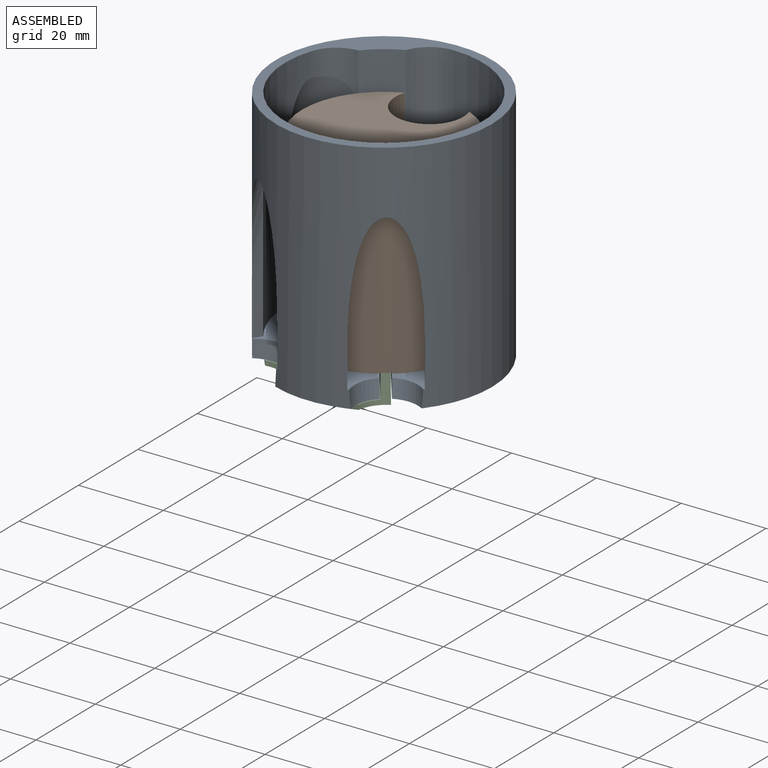
[diagram: assembled view]
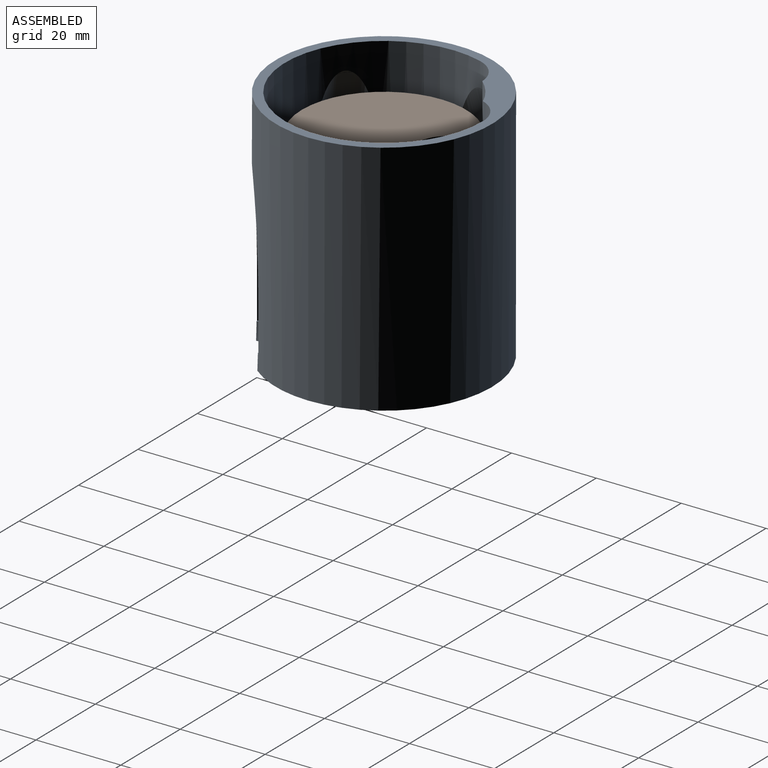
[diagram: assembled view, second angle]
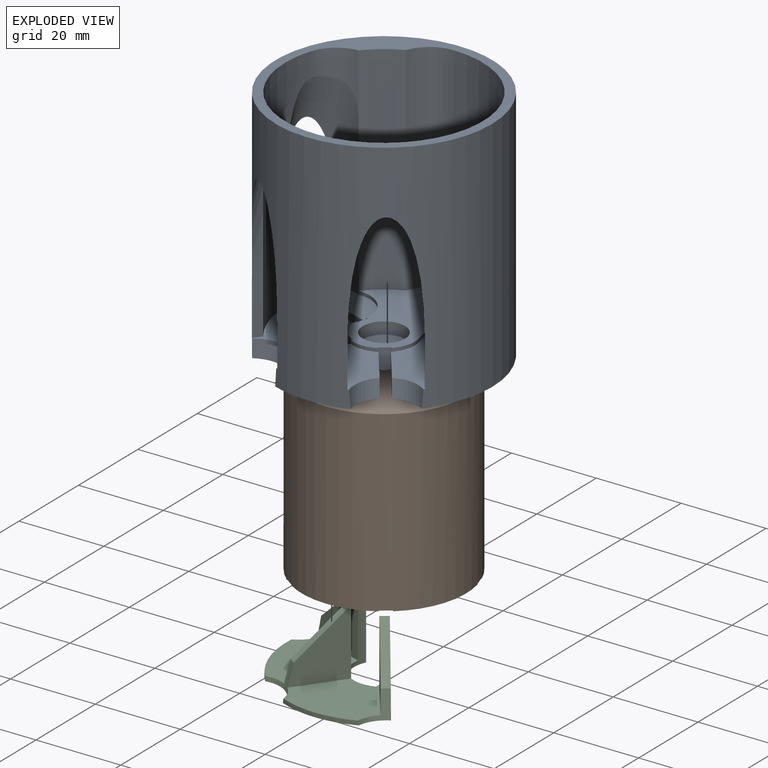
[diagram: exploded view]
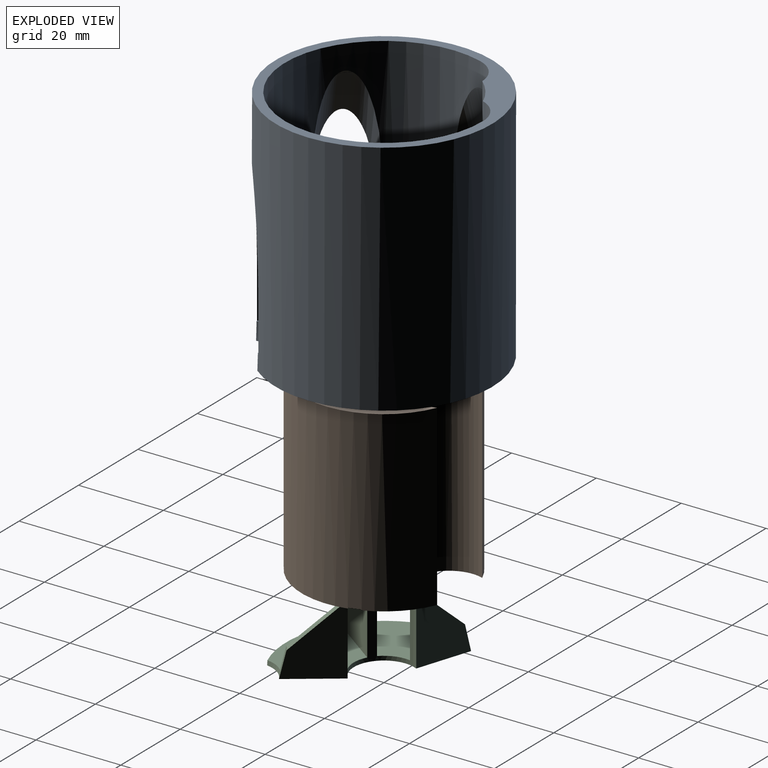
[diagram: exploded view, second angle]
ASSEMBLY  parts=3 mates=2
PART A: 47 faces, bbox 56x52.6x81.4 mm
  f0: cylinder r=8mm len=9.3mm, axis (0,0,1), area 11.4mm2, adj f3,f11,f21,f42
  f1: plane 20.51x17.59mm, normal (0,0,1), area 245.4mm2, adj f5,f15,f18,f25,f27,f31,f32,f35
  f2: plane 20.34x20.29mm, normal (0,0,1), area 245.4mm2, adj f6,f15,f18,f22,f24,f36,f37,f45
  f3: plane 14.49x11.24mm, normal (0,0,1), area 77mm2, adj f0,f18,f21,f42,f44
  f4: cylinder r=7.31mm len=7.39mm, axis (0,0,1), area 6.4mm2, adj f8,f9,f11,f28
  f5: cylinder r=7.31mm len=6.54mm, axis (0,0,1), area 5.4mm2, adj f1,f11,f25,f27
  f6: cylinder r=7.31mm len=6.22mm, axis (0,0,1), area 5.4mm2, adj f2,f11,f22,f24
  f7: plane 51x51mm, normal (0,0,-1), area 1785.4mm2, adj f18,f19,f20,f21,f22,f23,f24,f25
  f8: plane 28.31x18.1mm, normal (0,0,1), area 376.4mm2, adj f4,f9,f15,f18,f19,f28,f29,f30
  f9: cylinder r=8mm len=15.61mm, axis (0,0,1), area 20.1mm2, adj f4,f8,f11,f15
  f10: cylinder r=8mm len=16.16mm, axis (0,0,1), area 69.4mm2, adj f14,f15,f17,f41,f43
  f11: plane 37.06x30.62mm, normal (0,0,1), area 442.6mm2, adj f0,f4,f5,f6,f9,f13,f14,f15
  f12: plane 10x10mm, normal (0,0,1), area 78.5mm2, adj f13
  f13: cylinder r=5mm len=10mm, axis (0,0,1), area 88mm2, adj f11,f12
  f14: cylinder r=19.59mm len=51.2mm, axis (0,0,-1), area 472.2mm2, adj f10,f11,f16,f17,f42
  f15: cylinder r=23.31mm len=52mm, axis (0,0,-1), area 4506mm2, adj f1,f2,f8,f9,f10,f11,f16,f17
  f16: cylinder r=8mm len=51.2mm, axis (0,0,-1), area 497.8mm2, adj f11,f14,f15,f17
  f17: plane 51x51mm, normal (0,0,1), area 394.1mm2, adj f10,f14,f15,f16,f18
  f18: cylinder r=25.5mm len=56mm, axis (0,0,1), area 7354.4mm2, adj f1,f2,f3,f7,f8,f17,f29,f30
  f19: cylinder r=0.5mm len=4mm, axis (0,0,1), area 12.6mm2, adj f7,f8
  f20: cylinder r=6.91mm len=4.8mm, axis (0,0,1), area 11.6mm2, adj f7,f11,f21,f22
  f21: plane 12.61x4.8mm, normal (-0.31,-0.95,0), area 51.6mm2, adj f0,f3,f7,f11,f20,f44
  f22: plane 12.61x4.8mm, normal (0.31,0.95,0), area 51.4mm2, adj f2,f6,f7,f11,f20,f46
  f23: cylinder r=6.91mm len=4.8mm, axis (0,0,1), area 11.6mm2, adj f7,f11,f24,f25
  f24: plane 10.72x7.79mm, normal (0.81,-0.59,0), area 51.4mm2, adj f2,f6,f7,f11,f23,f36
  f25: plane 10.72x7.79mm, normal (-0.81,0.59,0), area 51.4mm2, adj f1,f5,f7,f11,f23,f35
  f26: cylinder r=6.91mm len=4.8mm, axis (0,0,1), area 11.6mm2, adj f7,f11,f27,f28
  f27: plane 10.72x7.79mm, normal (0.81,0.59,0), area 51.4mm2, adj f1,f5,f7,f11,f26,f31
  f28: plane 10.72x7.79mm, normal (-0.81,-0.59,0), area 51.4mm2, adj f4,f7,f8,f11,f26,f30
  f29: plane 19.31x1.86mm, normal (-0.81,-0.59,0), area 33.4mm2, adj f8,f15,f18,f33
  f30: cylinder r=7.5mm len=8.53mm, axis (0.14,-0.19,-0.97), area 32.5mm2, adj f7,f8,f18,f28
  f31: cylinder r=7.5mm len=8.6mm, axis (0.14,-0.19,-0.97), area 32.5mm2, adj f1,f7,f18,f27
  f32: plane 19.31x1.86mm, normal (0.81,0.59,0), area 33.4mm2, adj f1,f15,f18,f33
  f33: cylinder r=7.5mm len=36.04mm, axis (0.14,-0.19,-0.97), area 225mm2, adj f15,f18,f29,f32,f34
  f34: torus R=47.5mm, axis (0.14,-0.19,-0.97), area 1mm2, adj f15,f33
  f35: cylinder r=7.5mm len=8.6mm, axis (-0.14,-0.19,-0.97), area 32.5mm2, adj f1,f7,f18,f25
  f36: cylinder r=7.5mm len=8.53mm, axis (-0.14,-0.19,-0.97), area 32.5mm2, adj f2,f7,f18,f24
  f37: plane 19.31x1.86mm, normal (0.81,-0.59,0), area 33.4mm2, adj f2,f15,f18,f38
  f38: cylinder r=7.5mm len=36.04mm, axis (-0.14,-0.19,-0.97), area 225mm2, adj f15,f18,f37,f39,f40
  f39: plane 19.31x1.86mm, normal (-0.81,0.59,0), area 33.4mm2, adj f1,f15,f18,f38
  f40: torus R=47.5mm, axis (-0.14,-0.19,-0.97), area 1mm2, adj f15,f38
  f41: torus R=47.5mm, axis (-0.22,0.07,-0.97), area 2.4mm2, adj f10,f15,f43
  f42: plane 35.85x5.97mm, normal (-0.31,-0.95,0), area 143.1mm2, adj f0,f3,f14,f18,f43
  f43: cylinder r=7.5mm len=36.04mm, axis (-0.22,0.07,-0.97), area 308mm2, adj f10,f15,f18,f41,f42,f45
  f44: cylinder r=7.5mm len=7.63mm, axis (-0.22,0.07,-0.97), area 32.5mm2, adj f3,f7,f18,f21
  f45: plane 19.31x2.19mm, normal (0.31,0.95,0), area 33.4mm2, adj f2,f15,f18,f43
  f46: cylinder r=7.5mm len=7.82mm, axis (-0.22,0.07,-0.97), area 32.5mm2, adj f2,f7,f18,f22
PART B: 30 faces, bbox 38.8x37.2x44.8 mm
  f0: cylinder r=8mm len=42mm, axis (0,0,-1), area 1243.6mm2, adj f1,f2,f3,f6,f8,f9
  f1: cylinder r=19.39mm len=42mm, axis (0,0,-1), area 4459.5mm2, adj f0,f2,f3,f10,f11,f12,f15,f16
  f2: plane 38.78x37.23mm, normal (0,0,1), area 1024.8mm2, adj f0,f1
  f3: plane 38.78x37.23mm, normal (0,0,-1), area 811mm2, adj f0,f1,f4,f7,f8,f9,f11,f12
  f4: cylinder r=4.8mm len=9.6mm, axis (0,0,1), area 84.4mm2, adj f3,f5
  f5: plane 9.6x9.6mm, normal (0,0,-1), area 72.4mm2, adj f4
  f6: plane 2.8x0.67mm, normal (0,0,-1), area 1.4mm2, adj f0,f7,f8,f9
  f7: cylinder r=6.91mm len=10mm, axis (0,0,1), area 28.2mm2, adj f3,f6,f8,f9
  f8: plane 10x0.67mm, normal (-1,0,0), area 6.7mm2, adj f0,f3,f6,f7
  f9: plane 10x0.67mm, normal (1,0,0), area 6.7mm2, adj f0,f3,f6,f7
  f10: bspline ~12.04x10mm, area 42.4mm2, adj f1,f11,f12,f13
  f11: plane 11.95x10mm, normal (-0.31,0.95,0), area 68.9mm2, adj f1,f3,f10,f13,f14
  f12: plane 11.95x10mm, normal (0.31,-0.95,0), area 68.9mm2, adj f1,f3,f10,f13,f14
  f13: plane 2.98x1.83mm, normal (0,0,-1), area 2.8mm2, adj f10,f11,f12,f14
  f14: cylinder r=6.91mm len=10mm, axis (0,0,1), area 28.2mm2, adj f3,f11,f12,f13
  f15: bspline ~11.15x10mm, area 42.4mm2, adj f1,f16,f17,f18
  f16: plane 10.17x10mm, normal (0.81,0.59,0), area 68.9mm2, adj f1,f3,f15,f18,f19
  f17: plane 10.17x10mm, normal (-0.81,-0.59,0), area 68.9mm2, adj f1,f3,f15,f18,f19
  f18: plane 2.87x2.47mm, normal (0,0,-1), area 2.8mm2, adj f15,f16,f17,f19
  f19: cylinder r=6.91mm len=10mm, axis (0,0,1), area 28.2mm2, adj f3,f16,f17,f18
  f20: bspline ~11.15x10mm, area 42.4mm2, adj f1,f21,f22,f23
  f21: plane 10.17x10mm, normal (0.81,-0.59,0), area 68.9mm2, adj f1,f3,f20,f23,f24
  f22: plane 10.17x10mm, normal (-0.81,0.59,0), area 68.9mm2, adj f1,f3,f20,f23,f24
  f23: plane 2.87x2.47mm, normal (0,0,-1), area 2.8mm2, adj f20,f21,f22,f24
  f24: cylinder r=6.91mm len=10mm, axis (0,0,1), area 28.2mm2, adj f3,f21,f22,f23
  f25: bspline ~12.04x10mm, area 42.4mm2, adj f1,f26,f27,f28
  f26: plane 11.95x10mm, normal (-0.31,-0.95,0), area 68.9mm2, adj f1,f3,f25,f28,f29
  f27: plane 11.95x10mm, normal (0.31,0.95,0), area 68.9mm2, adj f1,f3,f25,f28,f29
  f28: plane 2.98x1.83mm, normal (0,0,-1), area 2.8mm2, adj f25,f26,f27,f29
  f29: cylinder r=6.91mm len=10mm, axis (0,0,1), area 28.2mm2, adj f3,f26,f27,f28
PART C: 21 faces, bbox 36.2x30.5x16.8 mm
  f0: plane 16.1x10.72mm, normal (0.81,0.59,0), area 138.3mm2, adj f8,f10,f14,f15,f16
  f1: plane 15.1x10.53mm, normal (-0.81,-0.59,0), area 125.2mm2, adj f8,f9,f14,f15,f16
  f2: plane 15.1x10.53mm, normal (0.81,-0.59,0), area 125.2mm2, adj f8,f9,f12,f17,f18
  f3: plane 15.1x10.53mm, normal (-0.81,0.59,0), area 125.2mm2, adj f8,f11,f12,f17,f18
  f4: plane 16.1x12.61mm, normal (0.31,0.95,0), area 138.3mm2, adj f8,f10,f13,f19,f20
  f5: plane 15.1x12.38mm, normal (-0.31,-0.95,0), area 125.2mm2, adj f8,f11,f13,f19,f20
  f6: cylinder r=23.07mm len=16.99mm, axis (0,0,1), area 18.2mm2, adj f10,f11,f12,f13
  f7: cylinder r=23.07mm len=17.86mm, axis (0,0,1), area 18.2mm2, adj f9,f10,f12,f14
  f8: cylinder r=7.11mm len=16.1mm, axis (0,0,1), area 110.8mm2, adj f0,f1,f2,f3,f4,f5,f9,f10
  f9: plane 22.14x16.97mm, normal (0,0,1), area 253.6mm2, adj f1,f2,f7,f8,f12,f14
  f10: plane 35.81x30.29mm, normal (0,0,-1), area 590.5mm2, adj f0,f4,f6,f7,f8,f12,f13,f14
  f11: plane 21.07x18.31mm, normal (0,0,1), area 253.6mm2, adj f3,f5,f6,f8,f12,f13
  f12: cylinder r=7.5mm len=9.77mm, axis (0.14,0.19,0.97), area 22.2mm2, adj f2,f3,f6,f7,f9,f10,f11,f18
  f13: cylinder r=7.5mm len=7.14mm, axis (0.22,-0.07,0.97), area 17.4mm2, adj f4,f5,f6,f10,f11,f20
  f14: cylinder r=7.5mm len=7.14mm, axis (-0.14,0.19,0.97), area 17.4mm2, adj f0,f1,f7,f9,f10,f16
  f15: plane 1.97x1.66mm, normal (0,0,1), area 1mm2, adj f0,f1,f8,f16
  f16: bspline ~10.23x10mm, area 30mm2, adj f0,f1,f14,f15
  f17: plane 1.97x1.66mm, normal (0,0,1), area 1mm2, adj f2,f3,f8,f18
  f18: bspline ~10.23x10mm, area 30mm2, adj f2,f3,f12,f17
  f19: plane 2.09x1.19mm, normal (0,0,1), area 1mm2, adj f4,f5,f8,f20
  f20: bspline ~11.26x10mm, area 30mm2, adj f4,f5,f13,f19
PLACE A t=(0,0,5)mm
PLACE B rot(axis=(-0.01,-0.13,-0.99),0deg) t=(0,0,5)mm
PLACE C t=(0,0,4.9)mm
MATE revolute B.f4 <-> A.f13  axis (0,0,-1) through (0,0,2.2)mm
MATE slider C.f8 <-> A.f20  axis (0,0,1) through (0,0,-0.2)mm
